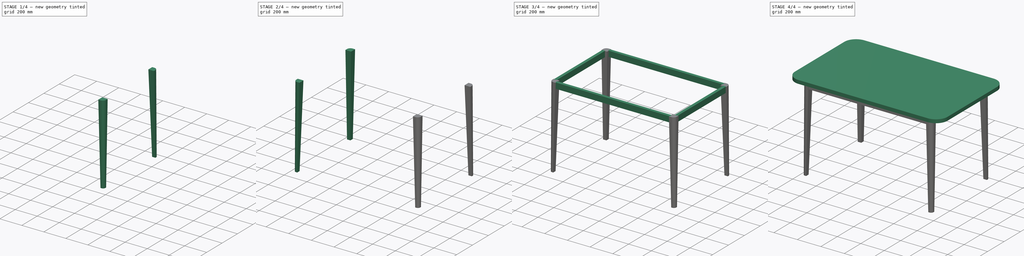
[diagram: build sequence overview — one tinted view per stage of 4, left to right]
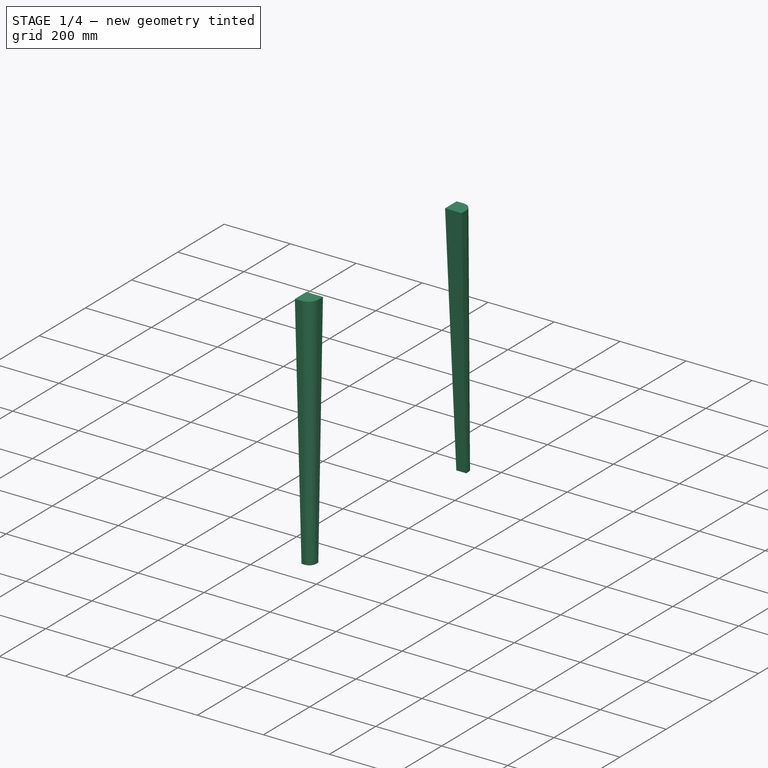
[diagram: stage 1 of 4 — iso view after this stage's code; geometry added in this stage tinted green]
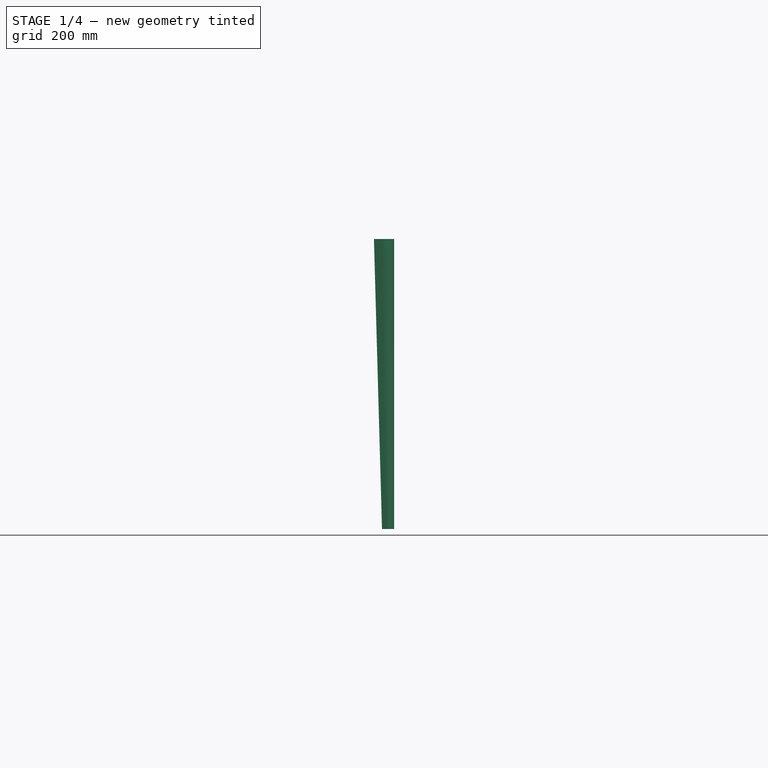
[diagram: stage 1 of 4 — front view after this stage's code; geometry added in this stage tinted green]
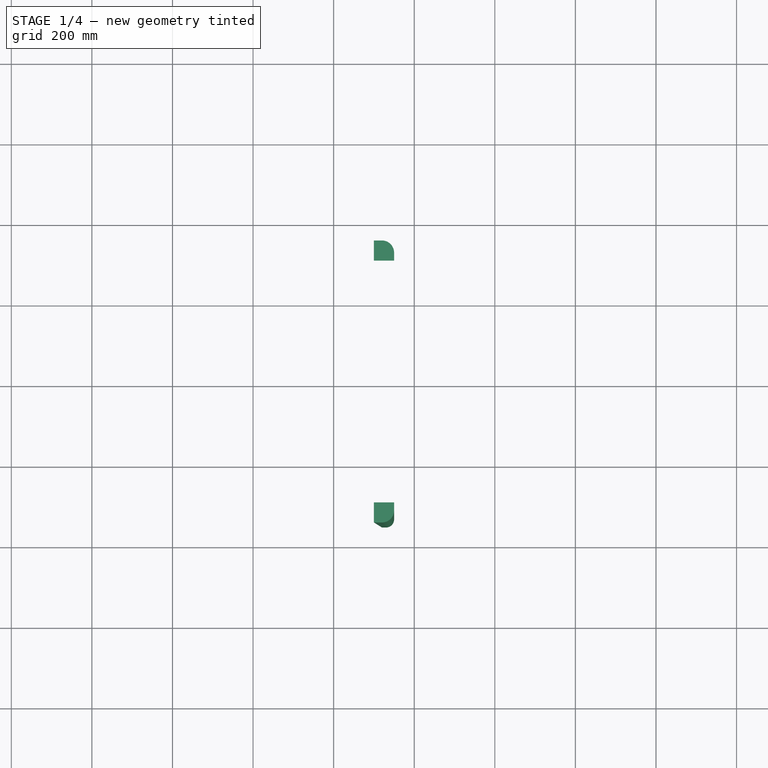
[diagram: stage 1 of 4 — top view after this stage's code; geometry added in this stage tinted green]
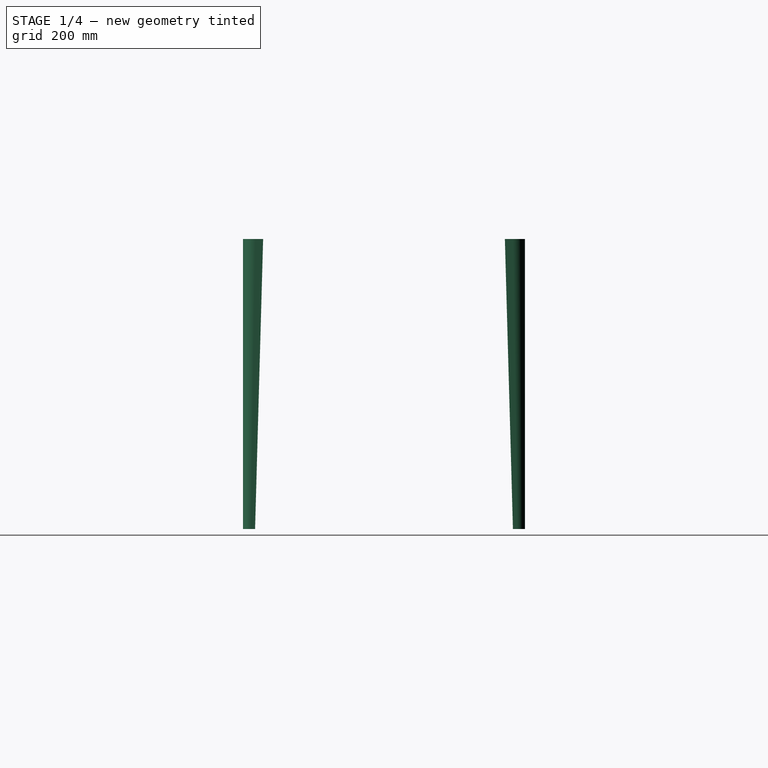
[diagram: stage 1 of 4 — right view after this stage's code; geometry added in this stage tinted green]
FCSTD DOCUMENT  (FreeCAD 1.0R38641 +468 (Git))
Label: Rectangular_tables_R02
License: All rights reserved
LicenseURL: https://en.wikipedia.org/wiki/All_rights_reserved
objects: Sketcher::SketchObject×12, App::DocumentObjectGroup×11, App::MaterialObjectPython×5, App::FeaturePython×5, Part::Loft×4, App::TextDocument×4, Part::Extrusion×3, Part::Compound×2, Spreadsheet::Sheet×1, App::VarSet×1, Part::Part2DObjectPython×1, App::DocumentObjectGroupPython×1
note: 39 computed .brp shape members not serialized (recipe doc carries the construction recipe); baked Part::Feature solids carry a one-line shape summary decoded from their .brp

FEATURE [Sketcher::SketchObject] Sketch262
  ArcFitTolerance = 0
  AttachmentSupport = -> [Sketch022]
  ExternalGeometry = -> [Sketch022]
  FullyConstrained = true
  MakeInternals = false
  MapMode = 2
  expr: .Constraints.Retreat_01 = VarSet.Feet_B_Retreat_01
  expr: .Constraints.Retreat_02 = VarSet.Feet_B_Retreat_02
  sketch-geometry (5):
    g0: LineSegment StartX=520 StartY=-320 StartZ=0 EndX=550 EndY=-320 EndZ=0
    g1: LineSegment StartX=550 StartY=-320 StartZ=0 EndX=550 EndY=-330 EndZ=0
    g2: LineSegment StartX=530 StartY=-350 StartZ=0 EndX=520 EndY=-350 EndZ=0
    g3: LineSegment StartX=520 StartY=-350 StartZ=0 EndX=520 EndY=-320 EndZ=0
    g4: ArcOfCircle CenterX=530 CenterY=-330 CenterZ=0 NormalX=0 NormalY=0 NormalZ=1 AngleXU=0 Radius=20 StartAngle=4.71239 EndAngle=6.28319
  constraints (14):
    c: Coincident(g0,g1)
    c: Coincident(g2,g3)
    c: Coincident(g3,g0)
    c: Horizontal(g0)
    c: Horizontal(g2)
    c: Vertical(g1)
    c: Vertical(g3)
    c: DistanceX(g0,g0) = 30  'Thickness'
    c: Tangent(g1,g4) = 1.5708
    c: Tangent(g2,g4) = 1.5708
    c: DistanceX(g0,g-4) = 100  'Retreat_01'
    c: DistanceY(g-4,g2) = 50  'Retreat_02'
    c: DistanceX(g0,g4) = 10
    c: DistanceY(g4,g0) = 10
FEATURE [Sketcher::SketchObject] Sketch263
  ArcFitTolerance = 0
  AttachmentOffset = pos=(0,0,720) rot=(0,0,1;0rad)
  AttachmentSupport = -> [Sketch022]
  ExternalGeometry = -> [Sketch022]
  FullyConstrained = true
  MakeInternals = false
  MapMode = 2
  Placement = pos=(0,0,720) rot=(0,0,1;0rad)
  expr: .AttachmentOffset.Base.z = VarSet.Base_dimensions_B_Height - VarSet.Panel_B_Thickness
  expr: .Constraints.Retreat_01 = VarSet.Feet_B_Retreat_01
  expr: .Constraints.Retreat_02 = VarSet.Feet_B_Retreat_02
  sketch-geometry (5):
    g0: LineSegment StartX=500 StartY=-300 StartZ=0 EndX=550 EndY=-300 EndZ=0
    g1: LineSegment StartX=550 StartY=-300 StartZ=0 EndX=550 EndY=-320 EndZ=0
    g2: LineSegment StartX=520 StartY=-350 StartZ=0 EndX=500 EndY=-350 EndZ=0
    g3: LineSegment StartX=500 StartY=-350 StartZ=0 EndX=500 EndY=-300 EndZ=0
    g4: ArcOfCircle CenterX=520 CenterY=-320 CenterZ=0 NormalX=0 NormalY=0 NormalZ=1 AngleXU=0 Radius=30 StartAngle=4.71239 EndAngle=6.28319
  constraints (14):
    c: Coincident(g0,g1)
    c: Coincident(g2,g3)
    c: Coincident(g3,g0)
    c: Horizontal(g0)
    c: Horizontal(g2)
    c: Vertical(g1)
    c: Vertical(g3)
    c: DistanceX(g0,g0) = 50  'Thickness'
    c: Tangent(g2,g4) = 1.5708
    c: Tangent(g1,g4) = 1.5708
    c: DistanceY(g-4,g2) = 50  'Retreat_02'
    c: DistanceX(g0,g-4) = 100  'Retreat_01'
    c: DistanceX(g0,g4) = 20
    c: DistanceY(g4,g0) = 20
FEATURE [Part::Loft] Loft002  label="Foot_03_"
  Closed = false
  MaxDegree = 5
  Ruled = true
  Sections = -> [Sketch262,Sketch263]
  Solid = true
FEATURE [Sketcher::SketchObject] Sketch264
  ArcFitTolerance = 0
  AttachmentSupport = -> [Sketch022]
  ExternalGeometry = -> [Sketch022]
  FullyConstrained = true
  MakeInternals = false
  MapMode = 2
  expr: .Constraints.Retreat_01 = VarSet.Feet_B_Retreat_01
  expr: .Constraints.Retreat_02 = VarSet.Feet_B_Retreat_02
  sketch-geometry (5):
    g0: LineSegment StartX=520 StartY=350 StartZ=0 EndX=530 EndY=350 EndZ=0
    g1: LineSegment StartX=550 StartY=330 StartZ=0 EndX=550 EndY=320 EndZ=0
    g2: LineSegment StartX=550 StartY=320 StartZ=0 EndX=520 EndY=320 EndZ=0
    g3: LineSegment StartX=520 StartY=320 StartZ=0 EndX=520 EndY=350 EndZ=0
    g4: ArcOfCircle CenterX=530 CenterY=330 CenterZ=0 NormalX=0 NormalY=0 NormalZ=1 AngleXU=0 Radius=20 StartAngle=-1.8e-15 EndAngle=1.5708
  constraints (14):
    c: Coincident(g1,g2)
    c: Coincident(g2,g3)
    c: Coincident(g3,g0)
    c: Horizontal(g0)
    c: Horizontal(g2)
    c: Vertical(g1)
    c: Vertical(g3)
    c: Tangent(g0,g4) = 1.5708
    c: Tangent(g1,g4) = 1.5708
    c: DistanceX(g2,g2) = 30  'Thickness'
    c: DistanceY(g0,g-4) = 50  'Retreat_02'
    c: DistanceX(g1,g-4) = 100  'Retreat_01'
    c: DistanceX(g2,g4) = 10
    c: DistanceY(g2,g4) = 10
FEATURE [Sketcher::SketchObject] Sketch265
  ArcFitTolerance = 0
  AttachmentOffset = pos=(0,0,720) rot=(0,0,1;0rad)
  AttachmentSupport = -> [Sketch022]
  ExternalGeometry = -> [Sketch022]
  FullyConstrained = true
  MakeInternals = false
  MapMode = 2
  Placement = pos=(0,0,720) rot=(0,0,1;0rad)
  expr: .AttachmentOffset.Base.z = VarSet.Base_dimensions_B_Height - VarSet.Panel_B_Thickness
  expr: .Constraints.Retreat_01 = VarSet.Feet_B_Retreat_01
  expr: .Constraints.Retreat_02 = VarSet.Feet_B_Retreat_02
  sketch-geometry (5):
    g0: LineSegment StartX=500 StartY=300 StartZ=0 EndX=550 EndY=300 EndZ=0
    g1: LineSegment StartX=550 StartY=300 StartZ=0 EndX=550 EndY=320 EndZ=0
    g2: LineSegment StartX=520 StartY=350 StartZ=0 EndX=500 EndY=350 EndZ=0
    g3: LineSegment StartX=500 StartY=350 StartZ=0 EndX=500 EndY=300 EndZ=0
    g4: ArcOfCircle CenterX=520 CenterY=320 CenterZ=0 NormalX=0 NormalY=0 NormalZ=1 AngleXU=0 Radius=30 StartAngle=1.315e-12 EndAngle=1.5708
  constraints (14):
    c: Coincident(g0,g1)
    c: Coincident(g2,g3)
    c: Coincident(g3,g0)
    c: Horizontal(g0)
    c: Horizontal(g2)
    c: Vertical(g1)
    c: Vertical(g3)
    c: DistanceX(g0,g0) = 50  'Thickness'
    c: Tangent(g2,g4) = -1.5708
    c: Tangent(g1,g4) = -1.5708
    c: DistanceY(g2,g-4) = 50  'Retreat_02'
    c: DistanceX(g0,g-4) = 100  'Retreat_01'
    c: DistanceX(g0,g4) = 20
    c: DistanceY(g0,g4) = 20
FEATURE [Part::Loft] Loft003  label="Foot_03_001"
  Closed = false
  MaxDegree = 5
  Ruled = true
  Sections = -> [Sketch264,Sketch265]
  Solid = true
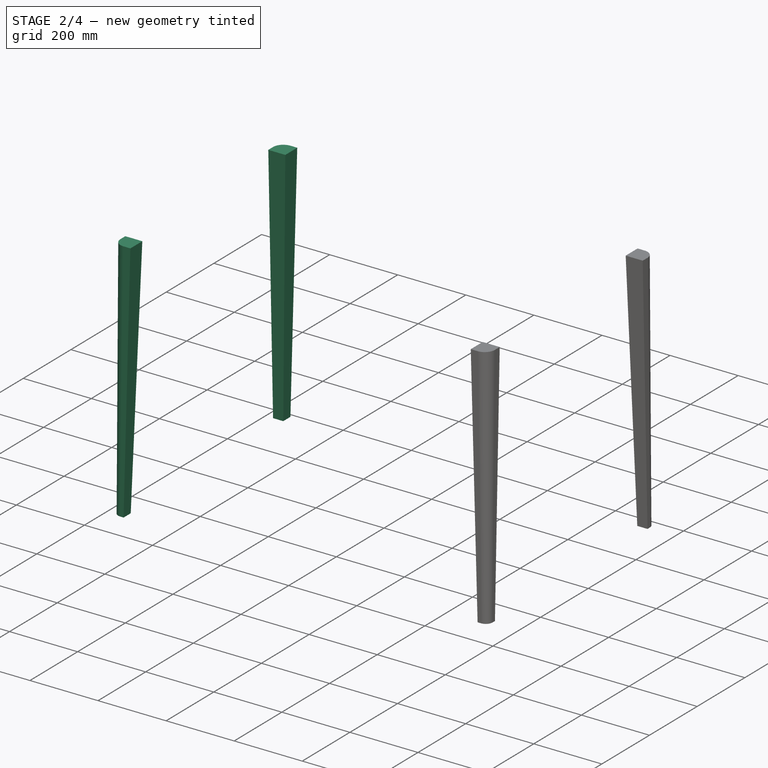
[diagram: stage 2 of 4 — iso view after this stage's code; geometry added in this stage tinted green]
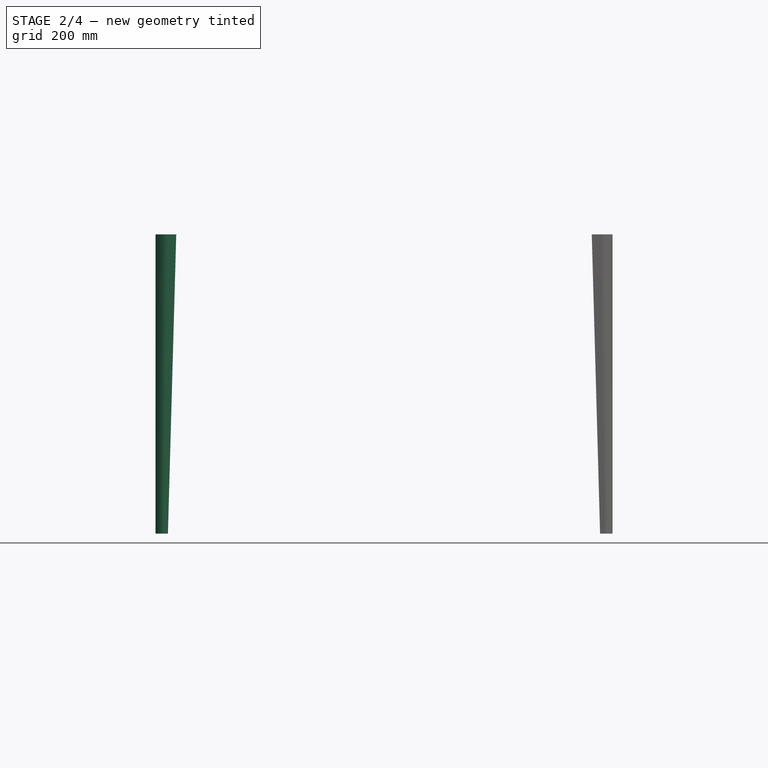
[diagram: stage 2 of 4 — front view after this stage's code; geometry added in this stage tinted green]
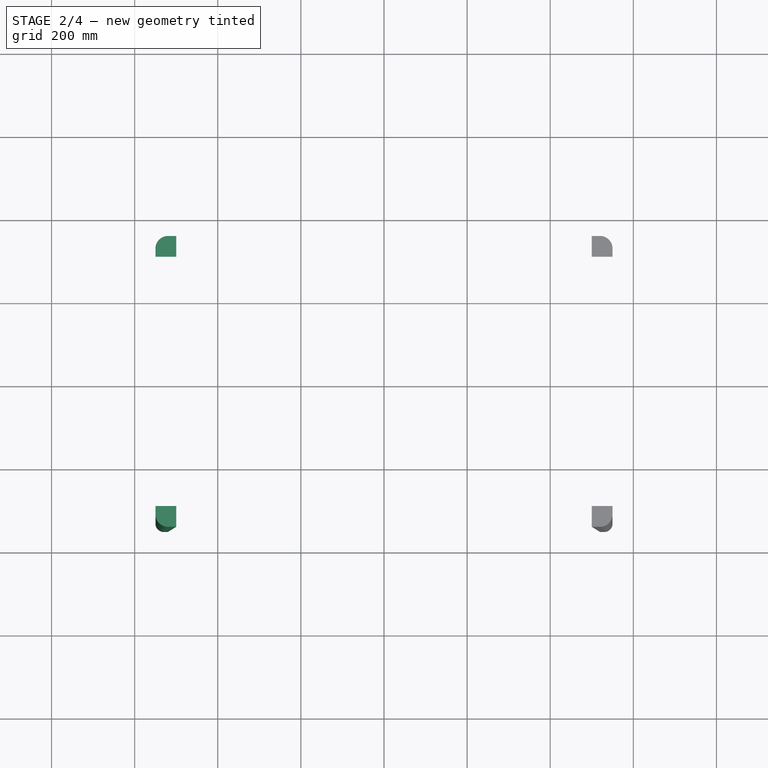
[diagram: stage 2 of 4 — top view after this stage's code; geometry added in this stage tinted green]
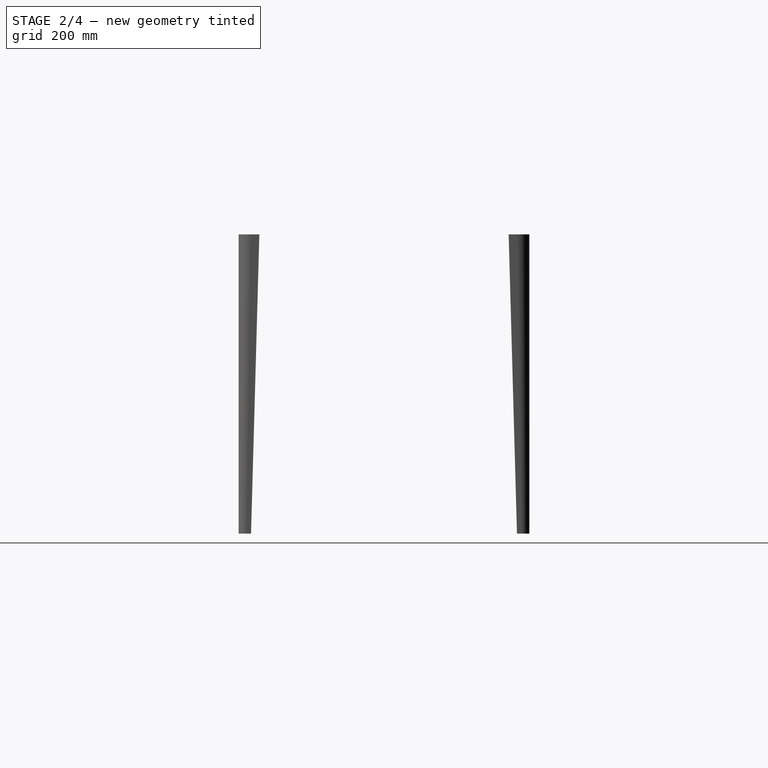
[diagram: stage 2 of 4 — right view after this stage's code; geometry added in this stage tinted green]
FEATURE [Sketcher::SketchObject] Sketch022  label="Rectangular table_base_move_rotate_#_"
  ArcFitTolerance = 0
  FullyConstrained = true
  MakeInternals = false
  expr: .Constraints.Length = VarSet.Base_dimensions_B_Length
  expr: .Constraints.Width = VarSet.Base_dimensions_B_Width
  expr: Label = VarSet.A_Component_Label + <<_base_move_rotate_#_>>
  sketch-geometry (11):
    g0: LineSegment StartX=-650 StartY=400 StartZ=0 EndX=650 EndY=400 EndZ=0
    g1: LineSegment StartX=650 StartY=400 StartZ=0 EndX=650 EndY=-400 EndZ=0
    g2: LineSegment StartX=650 StartY=-400 StartZ=0 EndX=-650 EndY=-400 EndZ=0
    g3: LineSegment StartX=-650 StartY=-400 StartZ=0 EndX=-650 EndY=400 EndZ=0
    g4: LineSegment [constr] StartX=-750 StartY=500 StartZ=0 EndX=750 EndY=500 EndZ=0
    g5: LineSegment [constr] StartX=750 StartY=500 StartZ=0 EndX=750 EndY=-500 EndZ=0
    g6: LineSegment [constr] StartX=750 StartY=-500 StartZ=0 EndX=-750 EndY=-500 EndZ=0
    g7: LineSegment [constr] StartX=-750 StartY=-500 StartZ=0 EndX=-750 EndY=500 EndZ=0
    g8: LineSegment StartX=-750 StartY=0 StartZ=0 EndX=750 EndY=0 EndZ=0
    g9: LineSegment StartX=0 StartY=500 StartZ=0 EndX=0 EndY=-500 EndZ=0
    g10: Circle CenterX=0 CenterY=0 CenterZ=0 NormalX=0 NormalY=0 NormalZ=1 AngleXU=0 Radius=50
  constraints (30):
    c: Coincident(g0,g1)
    c: Coincident(g1,g2)
    c: Coincident(g2,g3)
    c: Coincident(g3,g0)
    c: Horizontal(g2)
    c: Vertical(g1)
    c: DistanceX(g2,g2) = 1300  'Length'
    c: DistanceY(g3,g3) = 800  'Width'
    c: Symmetric(g0,g0,g-2)
    c: Symmetric(g0,g2,g-1)
    c: Coincident(g4,g5)
    c: Coincident(g5,g6)
    c: Coincident(g6,g7)
    c: Coincident(g7,g4)
    c: Horizontal(g6)
    c: Vertical(g7)
    c: Symmetric(g4,g5,g-1)
    c: Symmetric(g4,g4,g-2)
    c: DistanceY(g0,g4) = 100
    c: DistanceX(g0,g4) = 100
    c: PointOnObject(g8,g7)
    c: PointOnObject(g8,g5)
    c: Horizontal(g8)
    c: PointOnObject(g9,g4)
    c: PointOnObject(g9,g6)
    c: Vertical(g9)
    c: PointOnObject(g8,g-1)
    c: PointOnObject(g9,g-2)
    c: Coincident(g10,g-1)
    c: Diameter(g10) = 100
FEATURE [Spreadsheet::Sheet] Spreadsheet003  label="Spreadsheet_Rectangular table_#_"
  cells = A1='Description:; A2==<<%s>> % VarSet.A_Component_Label + << of %s x %s x %s>> % tuple(VarSet.Base_dimensions_B_Length; VarSet.Base_dimensions_B_Width; VarSet.Base_dimensions_B_Height) + << in length, width and height, compound of panel of %s>> % VarSet.Panel_C_Material.Label + << and feet of %s>> % VarSet.Feet_C_Material.Label + <<.>>; A4='Parts; B4='L; C4='H; D4='W; E4='T; F4='A; G4='Materials; H4='Quantities; A5='01-Top panel; B5==VarSet.Base_dimensions_B_Length; D5==VarSet.Base_dimensions_B_Width; E5==VarSet.Panel_B_Thickness; F5==Extrude039021.Area; G5==VarSet.Panel_C_Material.Label; H5=1; A6='02-Foot frames; B6==(VarSet.Base_dimensions_B_Length - 180 mm) * 2 + (VarSet.Base_dimensions_B_Width - 120 mm) * 2; C6==Sketch259.Constraints.Height; E6==Sketch259.Constraints.Width; G6==VarSet.Foot_frames_C_Material.Label; H6=4; A7='03-Feet; C7==VarSet.Base_dimensions_B_Height - VarSet.Panel_B_Thickness; E7==<<from %s>> % Sketch257.Constraints.Thickness + << to %s>> % Sketch258.Constraints.Thickness; G7==VarSet.Feet_C_Material.Label; H7=4
  expr: Label = <<Spreadsheet_>> + VarSet.A_Component_Label + <<_#_>>
FEATURE [Sketcher::SketchObject] Sketch255  label="Sketch032_Bottom_panel"
  ArcFitTolerance = 0
  AttachmentSupport = -> [Sketch022]
  ExternalGeometry = -> [Sketch022]
  FullyConstrained = true
  MakeInternals = false
  MapMode = 2
  expr: .Constraints.Radius = VarSet.Panel_B_Radius
  sketch-geometry (8):
    g0: LineSegment StartX=-550 StartY=400 StartZ=0 EndX=550 EndY=400 EndZ=0
    g1: LineSegment StartX=650 StartY=300 StartZ=0 EndX=650 EndY=-300 EndZ=0
    g2: LineSegment StartX=550 StartY=-400 StartZ=0 EndX=-550 EndY=-400 EndZ=0
    g3: LineSegment StartX=-650 StartY=-300 StartZ=0 EndX=-650 EndY=300 EndZ=0
    g4: ArcOfCircle CenterX=-550 CenterY=300 CenterZ=0 NormalX=0 NormalY=0 NormalZ=1 AngleXU=0 Radius=100 StartAngle=1.5708 EndAngle=3.14159
    g5: ArcOfCircle CenterX=-550 CenterY=-300 CenterZ=0 NormalX=0 NormalY=0 NormalZ=1 AngleXU=0 Radius=100 StartAngle=3.14159 EndAngle=4.71239
    g6: ArcOfCircle CenterX=550 CenterY=-300 CenterZ=0 NormalX=0 NormalY=0 NormalZ=1 AngleXU=0 Radius=100 StartAngle=4.71239 EndAngle=6.28319
    g7: ArcOfCircle CenterX=550 CenterY=300 CenterZ=0 NormalX=0 NormalY=0 NormalZ=1 AngleXU=0 Radius=100 StartAngle=1.83321e-11 EndAngle=1.5708
  constraints (20):
    c: Horizontal(g0)
    c: Horizontal(g2)
    c: Vertical(g1)
    c: Vertical(g3)
    c: Tangent(g3,g4) = 1.5708
    c: Tangent(g0,g4) = 1.5708
    c: Tangent(g3,g5) = 1.5708
    c: Tangent(g2,g5) = 1.5708
    c: Tangent(g2,g6) = 1.5708
    c: Tangent(g1,g6) = 1.5708
    c: Tangent(g1,g7) = 1.5708
    c: Tangent(g0,g7) = 1.5708
    c: Equal(g4,g7)
    c: Equal(g4,g6)
    c: Equal(g4,g5)
    c: Radius(g4) = 100  'Radius'
    c: PointOnObject(g3,g-3)
    c: PointOnObject(g1,g-4)
    c: Horizontal(g2,g-4)
    c: Horizontal(g0,g-3)
FEATURE [Sketcher::SketchObject] Sketch257
  ArcFitTolerance = 0
  AttachmentSupport = -> [Sketch022]
  ExternalGeometry = -> [Sketch022]
  FullyConstrained = true
  MakeInternals = false
  MapMode = 2
  expr: .Constraints.Retreat_01 = VarSet.Feet_B_Retreat_01
  expr: .Constraints.Retreat_02 = VarSet.Feet_B_Retreat_02
  sketch-geometry (5):
    g0: LineSegment StartX=-550 StartY=-320 StartZ=0 EndX=-520 EndY=-320 EndZ=0
    g1: LineSegment StartX=-520 StartY=-320 StartZ=0 EndX=-520 EndY=-350 EndZ=0
    g2: LineSegment StartX=-520 StartY=-350 StartZ=0 EndX=-530 EndY=-350 EndZ=0
    g3: LineSegment StartX=-550 StartY=-330 StartZ=0 EndX=-550 EndY=-320 EndZ=0
    g4: ArcOfCircle CenterX=-530 CenterY=-330 CenterZ=0 NormalX=0 NormalY=0 NormalZ=1 AngleXU=0 Radius=20 StartAngle=3.14159 EndAngle=4.71239
  constraints (14):
    c: Coincident(g0,g1)
    c: Coincident(g1,g2)
    c: Coincident(g3,g0)
    c: Horizontal(g0)
    c: Horizontal(g2)
    c: Vertical(g1)
    c: Vertical(g3)
    c: Tangent(g3,g4) = 1.5708
    c: Tangent(g2,g4) = 1.5708
    c: DistanceX(g0,g0) = 30  'Thickness'
    c: DistanceX(g-3,g0) = 100  'Retreat_01'
    c: DistanceY(g-3,g1) = 50  'Retreat_02'
    c: DistanceY(g4,g0) = 10
    c: DistanceX(g4,g0) = 10
FEATURE [Sketcher::SketchObject] Sketch258
  ArcFitTolerance = 0
  AttachmentOffset = pos=(0,0,720) rot=(0,0,1;0rad)
  AttachmentSupport = -> [Sketch022]
  ExternalGeometry = -> [Sketch022]
  FullyConstrained = true
  MakeInternals = false
  MapMode = 2
  Placement = pos=(0,0,720) rot=(0,0,1;0rad)
  expr: .AttachmentOffset.Base.z = VarSet.Base_dimensions_B_Height - VarSet.Panel_B_Thickness
  expr: .Constraints.Retreat_01 = VarSet.Feet_B_Retreat_01
  expr: .Constraints.Retreat_02 = VarSet.Feet_B_Retreat_02
  sketch-geometry (5):
    g0: LineSegment StartX=-550 StartY=-300 StartZ=0 EndX=-500 EndY=-300 EndZ=0
    g1: LineSegment StartX=-500 StartY=-300 StartZ=0 EndX=-500 EndY=-350 EndZ=0
    g2: LineSegment StartX=-500 StartY=-350 StartZ=0 EndX=-520 EndY=-350 EndZ=0
    g3: LineSegment StartX=-550 StartY=-320 StartZ=0 EndX=-550 EndY=-300 EndZ=0
    g4: ArcOfCircle CenterX=-520 CenterY=-320 CenterZ=0 NormalX=0 NormalY=0 NormalZ=1 AngleXU=0 Radius=30 StartAngle=3.14159 EndAngle=4.71239
  constraints (14):
    c: Coincident(g0,g1)
    c: Coincident(g1,g2)
    c: Coincident(g3,g0)
    c: Horizontal(g0)
    c: Horizontal(g2)
    c: Vertical(g1)
    c: Vertical(g3)
    c: DistanceX(g0,g0) = 50  'Thickness'
    c: Tangent(g2,g4) = 1.5708
    c: Tangent(g3,g4) = 1.5708
    c: DistanceX(g-3,g0) = 100  'Retreat_01'
    c: DistanceY(g-3,g1) = 50  'Retreat_02'
    c: DistanceX(g4,g0) = 20
    c: DistanceY(g4,g0) = 20
FEATURE [Part::Loft] Loft  label="Foot_01_"
  Closed = false
  MaxDegree = 5
  Ruled = true
  Sections = -> [Sketch257,Sketch258]
  Solid = true
FEATURE [Sketcher::SketchObject] Sketch260
  ArcFitTolerance = 0
  AttachmentSupport = -> [Sketch022]
  ExternalGeometry = -> [Sketch022]
  FullyConstrained = true
  MakeInternals = false
  MapMode = 2
  expr: .Constraints.Retreat_01 = VarSet.Feet_B_Retreat_01
  expr: .Constraints.Retreat_02 = VarSet.Feet_B_Retreat_02
  sketch-geometry (5):
    g0: LineSegment StartX=-530 StartY=350 StartZ=0 EndX=-520 EndY=350 EndZ=0
    g1: LineSegment StartX=-520 StartY=350 StartZ=0 EndX=-520 EndY=320 EndZ=0
    g2: LineSegment StartX=-520 StartY=320 StartZ=0 EndX=-550 EndY=320 EndZ=0
    g3: LineSegment StartX=-550 StartY=320 StartZ=0 EndX=-550 EndY=330 EndZ=0
    g4: ArcOfCircle CenterX=-530 CenterY=330 CenterZ=0 NormalX=0 NormalY=0 NormalZ=1 AngleXU=0 Radius=20 StartAngle=1.5708 EndAngle=3.14159
  constraints (14):
    c: Coincident(g0,g1)
    c: Coincident(g1,g2)
    c: Coincident(g2,g3)
    c: Horizontal(g0)
    c: Horizontal(g2)
    c: Vertical(g1)
    c: Vertical(g3)
    c: DistanceY(g1,g1) = 30  'Thickness'
    c: Tangent(g3,g4) = 1.5708
    c: Tangent(g0,g4) = 1.5708
    c: DistanceY(g0,g-3) = 50  'Retreat_02'
    c: DistanceX(g-3,g2) = 100  'Retreat_01'
    c: DistanceX(g4,g1) = 10
    c: DistanceY(g1,g4) = 10
FEATURE [Sketcher::SketchObject] Sketch261
  ArcFitTolerance = 0
  AttachmentOffset = pos=(0,0,720) rot=(0,0,1;0rad)
  AttachmentSupport = -> [Sketch022]
  ExternalGeometry = -> [Sketch022]
  FullyConstrained = true
  MakeInternals = false
  MapMode = 2
  Placement = pos=(0,0,720) rot=(0,0,1;0rad)
  expr: .AttachmentOffset.Base.z = VarSet.Base_dimensions_B_Height - VarSet.Panel_B_Thickness
  expr: .Constraints.Retreat_01 = VarSet.Feet_B_Retreat_01
  expr: .Constraints.Retreat_02 = VarSet.Feet_B_Retreat_02
  sketch-geometry (5):
    g0: LineSegment StartX=-520 StartY=350 StartZ=0 EndX=-500 EndY=350 EndZ=0
    g1: LineSegment StartX=-500 StartY=350 StartZ=0 EndX=-500 EndY=300 EndZ=0
    g2: LineSegment StartX=-500 StartY=300 StartZ=0 EndX=-550 EndY=300 EndZ=0
    g3: LineSegment StartX=-550 StartY=300 StartZ=0 EndX=-550 EndY=320 EndZ=0
    g4: ArcOfCircle CenterX=-520 CenterY=320 CenterZ=0 NormalX=0 NormalY=0 NormalZ=1 AngleXU=0 Radius=30 StartAngle=1.5708 EndAngle=3.14159
  constraints (14):
    c: Coincident(g0,g1)
    c: Coincident(g1,g2)
    c: Coincident(g2,g3)
    c: Horizontal(g0)
    c: Horizontal(g2)
    c: Vertical(g1)
    c: Vertical(g3)
    c: DistanceY(g1,g1) = 50  'Tickness'
    c: Tangent(g3,g4) = 1.5708
    c: Tangent(g0,g4) = 1.5708
    c: DistanceX(g-3,g2) = 100  'Retreat_01'
    c: DistanceY(g0,g-3) = 50  'Retreat_02'
    c: DistanceX(g4,g1) = 20
    c: DistanceY(g1,g4) = 20
FEATURE [Part::Loft] Loft001  label="Foot_02_"
  Closed = false
  MaxDegree = 5
  Ruled = true
  Sections = -> [Sketch260,Sketch261]
  Solid = true
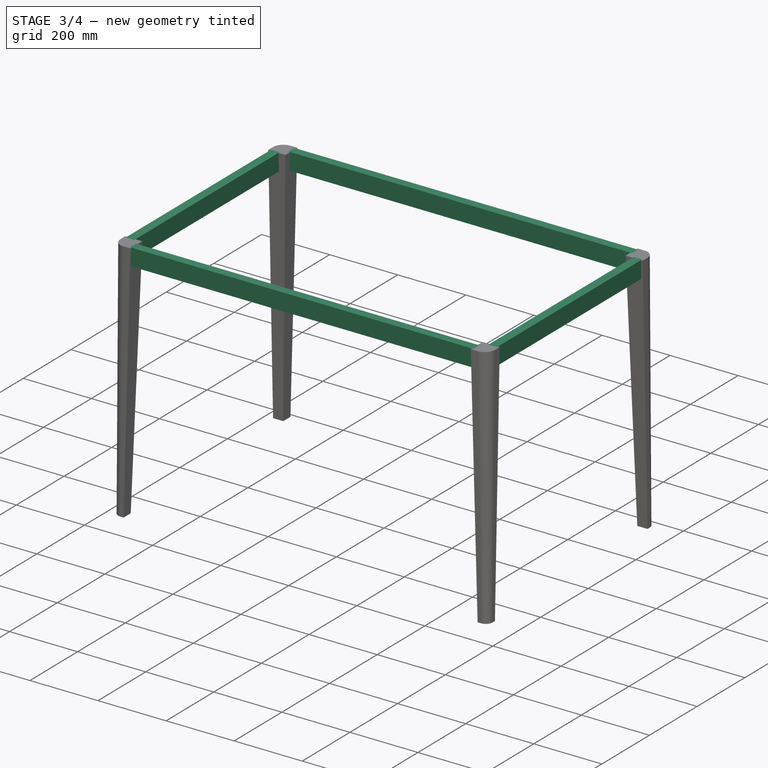
[diagram: stage 3 of 4 — iso view after this stage's code; geometry added in this stage tinted green]
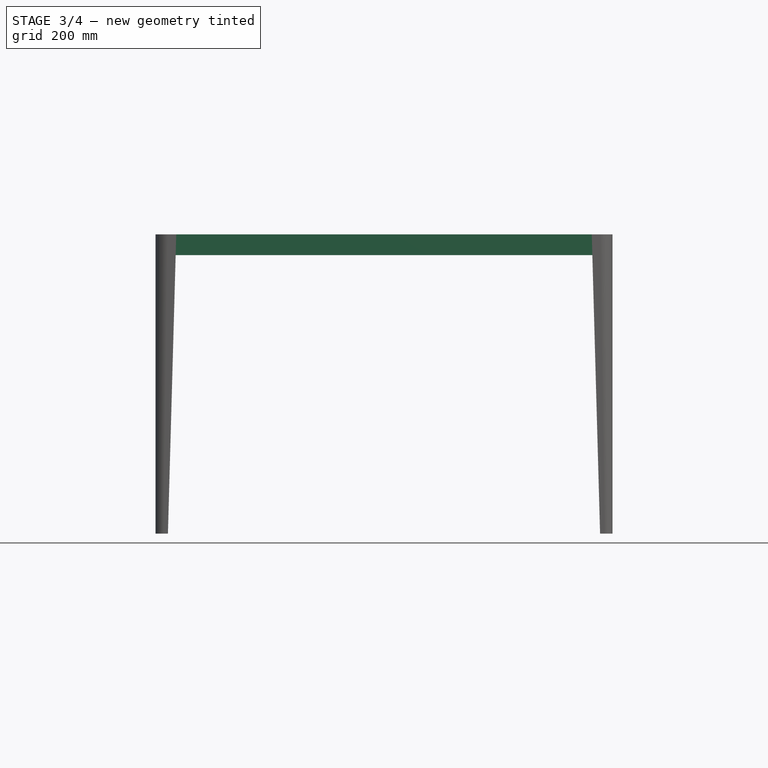
[diagram: stage 3 of 4 — front view after this stage's code; geometry added in this stage tinted green]
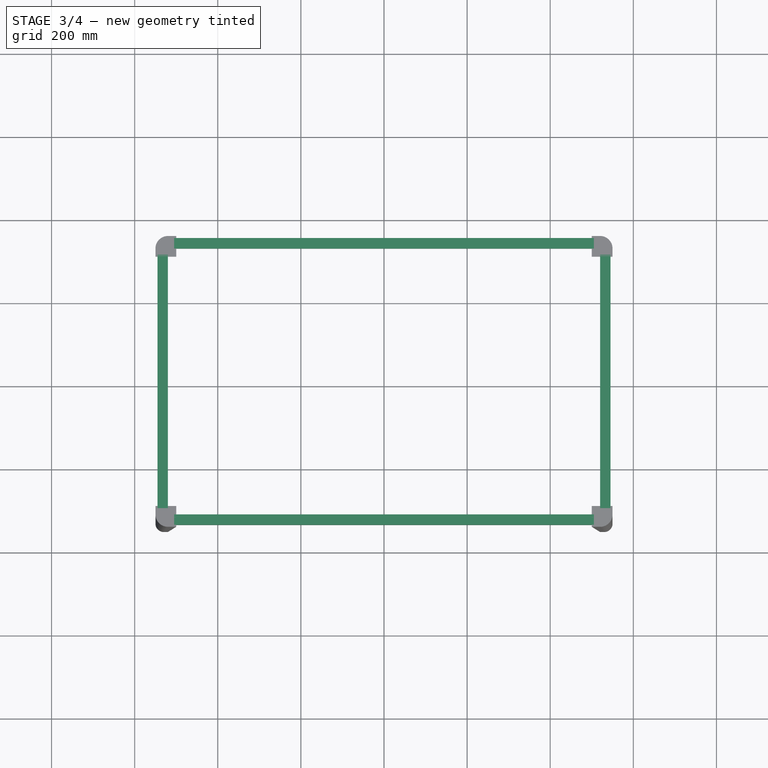
[diagram: stage 3 of 4 — top view after this stage's code; geometry added in this stage tinted green]
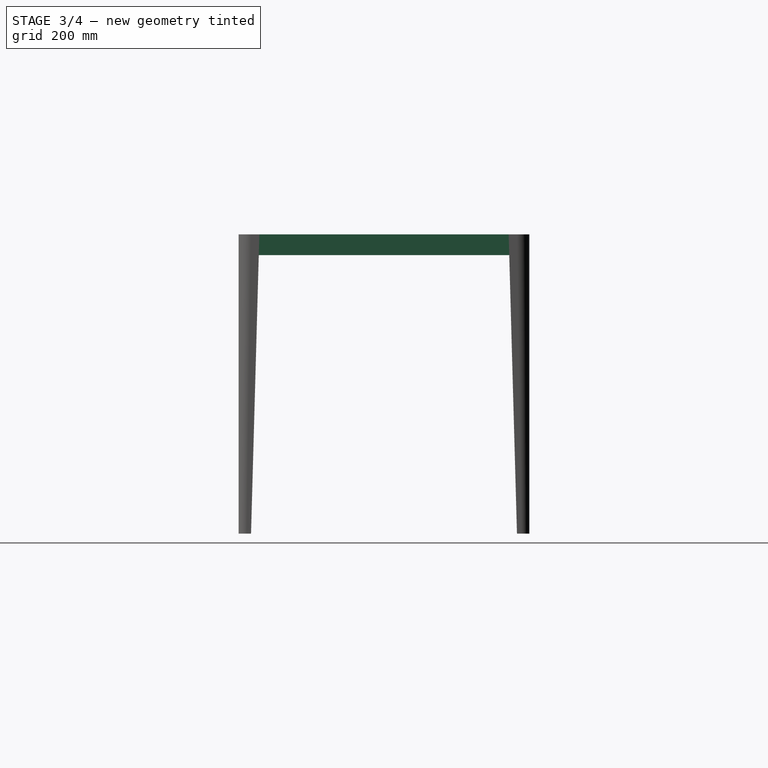
[diagram: stage 3 of 4 — right view after this stage's code; geometry added in this stage tinted green]
FEATURE [Sketcher::SketchObject] Sketch259
  ArcFitTolerance = 0
  AttachmentOffset = pos=(0,0,-505) rot=(0,0,1;0rad)
  AttachmentSupport = -> [Sketch022]
  ExternalGeometry = -> [Sketch022]
  FullyConstrained = true
  MakeInternals = false
  MapMode = 4
  Placement = pos=(-505,0,0) rot=(0.57735,0.57735,0.57735;2.0944rad)
  expr: .AttachmentOffset.Base.x = 0
  expr: .AttachmentOffset.Base.y = 0
  expr: .AttachmentOffset.Base.z = -VarSet.Base_dimensions_B_Length / 2 + VarSet.Feet_B_Retreat_01 + 45 mm
  expr: .Constraints.Front_retreat = VarSet.Feet_B_Retreat_02 + 5 mm
  expr: .Constraints.Height_from_floor = VarSet.Base_dimensions_B_Height - VarSet.Panel_B_Thickness
  expr: .Constraints.Rear_retreat = VarSet.Feet_B_Retreat_02 + 5 mm
  sketch-geometry (8):
    g0: LineSegment StartX=-345 StartY=720 StartZ=0 EndX=-320 EndY=720 EndZ=0
    g1: LineSegment StartX=-320 StartY=720 StartZ=0 EndX=-320 EndY=670 EndZ=0
    g2: LineSegment StartX=-320 StartY=670 StartZ=0 EndX=-345 EndY=670 EndZ=0
    g3: LineSegment StartX=-345 StartY=670 StartZ=0 EndX=-345 EndY=720 EndZ=0
    g4: LineSegment StartX=320 StartY=720 StartZ=0 EndX=345 EndY=720 EndZ=0
    g5: LineSegment StartX=345 StartY=720 StartZ=0 EndX=345 EndY=670 EndZ=0
    g6: LineSegment StartX=345 StartY=670 StartZ=0 EndX=320 EndY=670 EndZ=0
    g7: LineSegment StartX=320 StartY=670 StartZ=0 EndX=320 EndY=720 EndZ=0
  constraints (24):
    c: Horizontal(g0)
    c: Coincident(g0,g1)
    c: Vertical(g1)
    c: Coincident(g3,g0)
    c: Vertical(g3)
    c: DistanceX(g0,g0) = 25  'Width'
    c: Horizontal(g2)
    c: DistanceX(g-3,g0) = 55  'Front_retreat'
    c: DistanceY(g2,g0) = 50  'Height'
    c: DistanceY(g0) = 720  'Height_from_floor'
    c: Coincident(g4,g5)
    c: Coincident(g7,g4)
    c: Horizontal(g4)
    c: Horizontal(g6)
    c: Vertical(g5)
    c: Vertical(g7)
    c: DistanceX(g4,g4) = 25
    c: DistanceY(g6,g4) = 50
    c: Horizontal(g4,g0)
    c: DistanceX(g4,g-3) = 55  'Rear_retreat'
    c: Coincident(g6,g7)
    c: Coincident(g5,g6)
    c: Coincident(g2,g3)
    c: Coincident(g1,g2)
FEATURE [Part::Extrusion] Extrude084143354  label="Frame_"
  Base = -> Sketch259
  Dir = (1,0,0)
  DirMode = 2
  FaceMakerClass = Part::FaceMakerBullseye
  FaceMakerMode = 3
  LengthFwd = 1010
  LengthRev = 0
  Solid = true
  Symmetric = false
  expr: LengthFwd = VarSet.Base_dimensions_B_Length - 2 * VarSet.Feet_B_Retreat_01 - 90 mm
FEATURE [Sketcher::SketchObject] Sketch266
  ArcFitTolerance = 0
  AttachmentOffset = pos=(0,0,-305) rot=(0,0,1;0rad)
  AttachmentSupport = -> [Sketch022]
  ExternalGeometry = -> [Sketch022]
  FullyConstrained = true
  MakeInternals = false
  MapMode = 3
  Placement = pos=(0,305,-6.77e-14) rot=(1,0,0;1.5708rad)
  expr: .AttachmentOffset.Base.x = 0
  expr: .AttachmentOffset.Base.y = 0
  expr: .AttachmentOffset.Base.z = -VarSet.Base_dimensions_B_Width / 2 + VarSet.Feet_B_Retreat_02 + 45 mm
  expr: .Constraints.Height = VarSet.Base_dimensions_B_Height - VarSet.Panel_B_Thickness
  expr: .Constraints.Retreat_02 = VarSet.Feet_B_Retreat_01 + 5 mm
  expr: .Constraints.Retreat_2 = VarSet.Feet_B_Retreat_01 + 5 mm
  sketch-geometry (8):
    g0: LineSegment StartX=520 StartY=720 StartZ=0 EndX=545 EndY=720 EndZ=0
    g1: LineSegment StartX=545 StartY=720 StartZ=0 EndX=545 EndY=670 EndZ=0
    g2: LineSegment StartX=545 StartY=670 StartZ=0 EndX=520 EndY=670 EndZ=0
    g3: LineSegment StartX=520 StartY=670 StartZ=0 EndX=520 EndY=720 EndZ=0
    g4: LineSegment StartX=-545 StartY=720 StartZ=0 EndX=-520 EndY=720 EndZ=0
    g5: LineSegment StartX=-520 StartY=720 StartZ=0 EndX=-520 EndY=670 EndZ=0
    g6: LineSegment StartX=-520 StartY=670 StartZ=0 EndX=-545 EndY=670 EndZ=0
    g7: LineSegment StartX=-545 StartY=670 StartZ=0 EndX=-545 EndY=720 EndZ=0
  constraints (24):
    c: Horizontal(g0)
    c: Coincident(g0,g1)
    c: Vertical(g1)
    c: Coincident(g3,g0)
    c: Vertical(g3)
    c: DistanceY(g0) = 720  'Height'
    c: DistanceX(g0,g-3) = 105  'Retreat_2'
    c: DistanceX(g3,g1) = 25  'Thickness'
    c: Coincident(g4,g5)
    c: Coincident(g7,g4)
    c: Horizontal(g4)
    c: Horizontal(g6)
    c: Vertical(g5)
    c: Vertical(g7)
    c: Equal(g4,g0)
    c: Horizontal(g4,g0)
    c: Horizontal(g6,g2)
    c: Coincident(g2,g3)
    c: Coincident(g1,g2)
    c: Horizontal(g2)
    c: Coincident(g6,g5)
    c: Coincident(g7,g6)
    c: DistanceY(g1,g0) = 50
    c: DistanceX(g-3,g4) = 105  'Retreat_02'
FEATURE [Part::Extrusion] Extrude084143355  label="Frame_02_"
  Base = -> Sketch266
  Dir = (0,-1,2e-16)
  DirMode = 2
  FaceMakerClass = Part::FaceMakerBullseye
  FaceMakerMode = 3
  LengthFwd = 610
  LengthRev = 0
  Solid = true
  Symmetric = false
  expr: LengthFwd = VarSet.Base_dimensions_B_Width - 2 * VarSet.Feet_B_Retreat_02 - 90 mm
FEATURE [Part::Compound] Compound001  label="03-Feet_001"
  Links = -> [Loft,Loft001,Loft002,Loft003]
  Material = -> Material053
  expr: Material = VarSet.Feet_C_Material
  expr: Visibility = VarSet.Visualization_A_Visualization
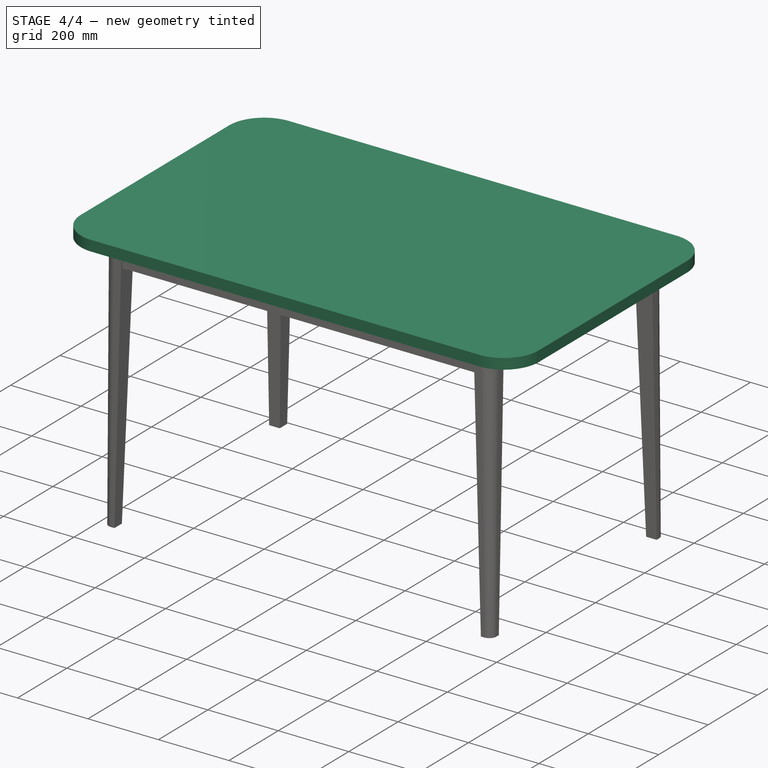
[diagram: stage 4 of 4 — iso view after this stage's code; geometry added in this stage tinted green]
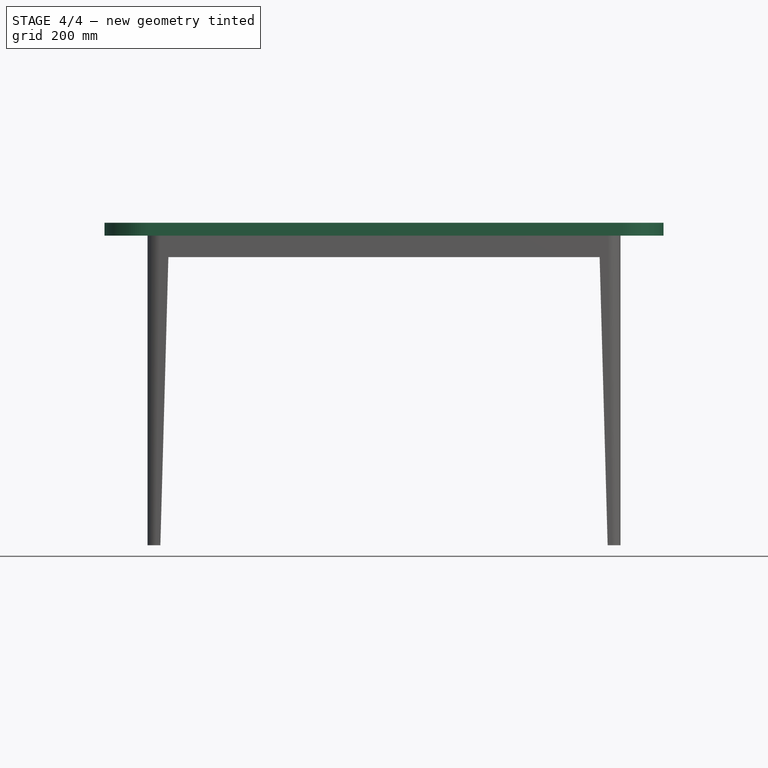
[diagram: stage 4 of 4 — front view after this stage's code; geometry added in this stage tinted green]
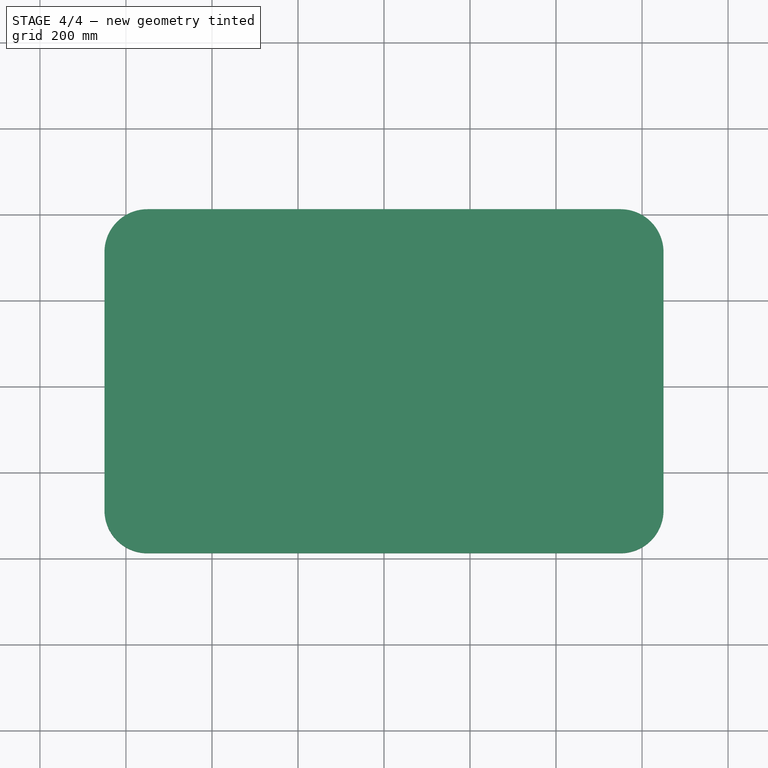
[diagram: stage 4 of 4 — top view after this stage's code; geometry added in this stage tinted green]
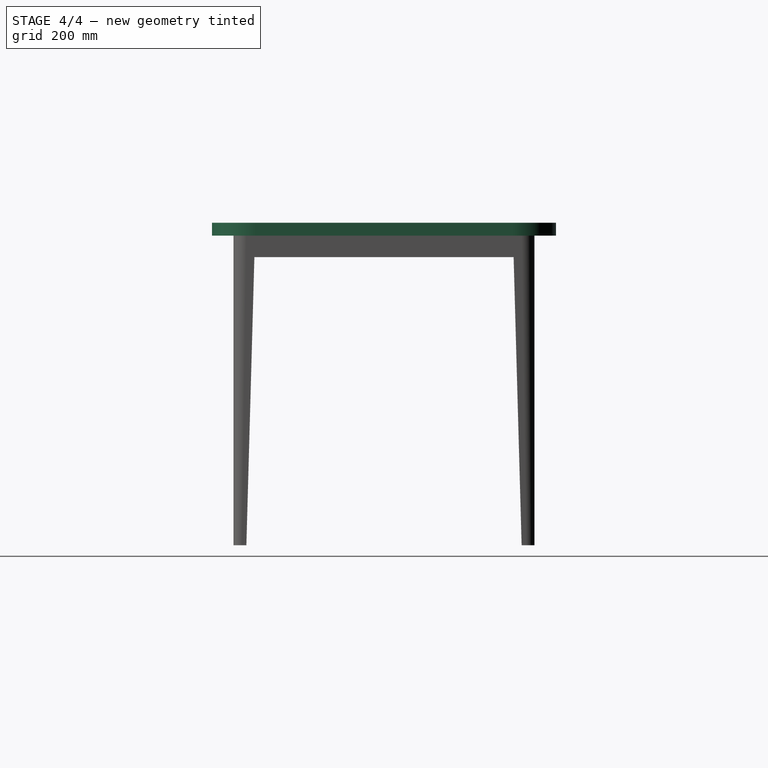
[diagram: stage 4 of 4 — right view after this stage's code; geometry added in this stage tinted green]
FEATURE [App::DocumentObjectGroup] Group292  label="02-Elements_to_move_rotate"
  Group = -> [Sketch022]
FEATURE [App::DocumentObjectGroup] Group249  label="04-Spreadsheet_"
  Group = -> [Spreadsheet003]
FEATURE [App::TextDocument] Text_document002  label="Rectangular_table_file_configurations_"
  Text = <blob: 3167 chars omitted>
FEATURE [App::TextDocument] Text_document003  label="Guidelines_new_objects_properties_"
  Text = <blob: 3302 chars omitted>
FEATURE [App::DocumentObjectGroup] Group250  label="05-Guidelines_"
  Group = -> [Text_document002,Text_document003]
FEATURE [App::TextDocument] Text_document011  label="Model_01_Rectangular_table"
  Text = #**************************************************************\n# To use, select all, copy and paste into the Python console.\n#**************************************************************\n\n# -*- coding: utf-8 -*-\n\n# Macro Begin: Rectangular_table_Model_01.FCMacro +++++++++++++++++++++++++++++++++++++++++++++++++\nimport FreeCAD\n\n#**************************************************************************\n # NOTE: Update the "VarSet" with the corresponding renamed one when inserted into the file ("VarSet001", "VarSet002", etc.). For example: Obj = FreeCAD.ActiveDocument.VarSet002\n#**************************************************************************\n\nObj = None\nObj = FreeCAD.ActiveDocument.VarSet # See NOTE above\n\n#***********************\n# A_component\n#***********************\n\nObj.A_Component_Label = 'Rectangular table'\n\n\n#***********************\n# Base_dimensions\n#***********************\n\nObj.Base_dimensions_B_Height = '750 mm'\n\nObj.Base_dimensions_B_Length = '1300 mm'\n\nObj.Base_dimensions_B_Width = '800 mm'\n\n#***********************\n# Feet\n#***********************\n\nObj.Feet_B_Retreat_01 = '100 mm'\n\nObj.Feet_B_Retreat_02 = '50 mm'\n\nObj.Feet_C_Material = FreeCAD.ActiveDocument.Material053\n\n#***********************\n# Foot_frames\n#***********************\n\nObj.Foot_frames_C_Material = FreeCAD.ActiveDocument.Material053\n\n#***********************\n# Panel\n#***********************\n\nObj.Panel_B_Radius = '100 mm'\n\nObj.Panel_B_Thickness = '30 mm'\n\nObj.Panel_C_Material = FreeCAD.ActiveDocument.Material055\n\n#***********************\n# Visualization\n#***********************\n\nObj.Visualization_A_Visualization = False\nApp.activeDocument().recompute(None,True,True)\nObj.Visualization_A_Visualization = True\nApp.activeDocument().recompute(None,True,True)\n\n\n# Macro End: Rectanular_table_Model_01.FCMacro +++++++++++++++++++++++++++++++++++++++++++++++++
FEATURE [App::TextDocument] Text_document012  label="Model_02_Bedside_table"
  Text = #**************************************************************\n# To use, select all, copy and paste into the Python console.\n#**************************************************************\n\n# -*- coding: utf-8 -*-\n\n# Macro Begin: Rectangular_table_Model_02.FCMacro +++++++++++++++++++++++++++++++++++++++++++++++++\nimport FreeCAD\n\n#**************************************************************************\n # NOTE: Update the "VarSet" with the corresponding renamed one when inserted into the file ("VarSet001", "VarSet002", etc.). For example: Obj = FreeCAD.ActiveDocument.VarSet02\n#**************************************************************************\n\nObj = None\nObj = FreeCAD.ActiveDocument.VarSet # See NOTE above\n#***********************\n# A_component\n#***********************\n\nObj.A_Component_Label = 'Square table'\n\n\n#***********************\n# Base_dimensions\n#***********************\n\nObj.Base_dimensions_B_Height = '400 mm'\n\nObj.Base_dimensions_B_Length = '400 mm'\n\nObj.Base_dimensions_B_Width = '400 mm'\n\n#***********************\n# Feet\n#***********************\n\nObj.Feet_B_Retreat_01 = '10 mm'\n\nObj.Feet_B_Retreat_02 = '10 mm'\n\nObj.Feet_C_Material = FreeCAD.ActiveDocument.Material053\n\n#***********************\n# Foot_frames\n#***********************\n\nObj.Foot_frames_C_Material = FreeCAD.ActiveDocument.Material053\n\n#***********************\n# Panel\n#***********************\n\nObj.Panel_B_Radius = '50 mm'\n\nObj.Panel_B_Thickness = '20 mm'\n\nObj.Panel_C_Material = FreeCAD.ActiveDocument.Material055\n\n#***********************\n# Visualization\n#***********************\n\nObj.Visualization_A_Visualization = False\nApp.activeDocument().recompute(None,True,True)\nObj.Visualization_A_Visualization = True\nApp.activeDocument().recompute(None,True,True)\n\n\n# Macro End: Rectanular_table_Model_02.FCMacro +++++++++++++++++++++++++++++++++++++++++++++++++
FEATURE [App::DocumentObjectGroup] Group  label="06-Macros_models_(open_copy_paste_Python_console)"
  Group = -> [Text_document011,Text_document012]
FEATURE [App::MaterialObjectPython] Material047  label="glass generic"  # material (typed FeaturePython)
  Material = Color=(0.3333333333333333, 0.6666666666666666, 1.0, 1.0); DiffuseColor=(0.3333333333333333, 0.6666666666666666, 1.0, 1.0); Name=glass generic; SectionColor=(0.8, 0.8, 0.8, 1.0); Transparency=70; ViewColor=(0.3333333333333333, 0.6666666666666666, 1.0, 1.0)
  Transparency = 70
FEATURE [App::DocumentObjectGroup] Group311  label="Glass_"
  Group = -> [Material047]
FEATURE [App::MaterialObjectPython] Material048  label="aluminum generic"  # material (typed FeaturePython)
  Material = AuthorAndLicense=Uwe Stöhr; CardName=Aluminum-Generic; Color=(0.8, 0.8, 0.8, 1.0); Density=2700 kg/m^3; DiffuseColor=(0.8, 0.8, 0.8, 1.0); ElectricalConductivity=370370.4 S/m; Father=Metal; KindOfMaterial=Aluminium; Name=aluminum generic; PoissonRatio=0.35; RelativePermeability=1.0; SectionColor=(0.8, 0.8, 0.8, 1.0); ShearModulus=25.0 GPa; SpecificHeat=897.0 J/kg/K; ThermalConductivity=237.0 W/m/K; ThermalExpansionCoefficient=23.1 µm/m/K; Transparency=0; UltimateTensileStrength=310 MPa; ViewColor=(0.8, 0.8, 0.8, 1.0); YoungsModulus=70000 MPa
  Transparency = 0
FEATURE [App::MaterialObjectPython] Material049  label="stainless steel generic"  # material (typed FeaturePython)
  Material = AuthorAndLicense=Uwe Stöhr; CardName=Iron-Generic; Color=(0.8, 0.8, 0.8, 1.0); Density=7874 kg/m^3; DiffuseColor=(0.3607843220233917, 0.3607843220233917, 0.40784314274787903); ElectricalConductivity=10.3 MS/m; Father=Metal; KindOfMaterial=Iron; Name=stainless steel generic; PoissonRatio=0.29; RelativePermeability=5000.0; SectionColor=(0.8, 0.8, 0.8, 1.0); ShearModulus=82.0 GPa; SpecificHeat=460.5 J/kg/K; ThermalConductivity=80.4 W/m/K; ThermalExpansionCoefficient=11.8 µm/m/K; Transparency=0; UltimateTensileStrength=497 MPa; ViewColor=(0.8, 0.8, 0.8, 1.0); YieldStrength=428 MPa; YoungsModulus=211 GPa
  Transparency = 0
FEATURE [App::DocumentObjectGroup] Group310  label="Metal_"
  Group = -> [Material049,Material048]
FEATURE [App::MaterialObjectPython] Material053  label="wood generic"  # material (typed FeaturePython)
  Description = A standard construction wood
  Material = AuthorAndLicense=(c) 2015 Bernd Hahnebach (CC-BY 3.0); CardName=Wood-Generic; Color=(0.8, 0.8, 0.8, 1.0); Density=700 kg/m^3; Description=A standard construction wood; DiffuseColor=(0.45490196347236633, 0.22745098173618317, 0.0); Father=Aggregate; Name=wood generic; PoissonRatio=0.05; ProductURL=https://en.wikipedia.org/wiki/Wood; SectionColor=(0.8, 0.8, 0.8, 1.0); Transparency=0; ViewColor=(0.8, 0.8, 0.8, 1.0); YoungsModulus=12000 MPa
  ProductURL = https://en.wikipedia.org/wiki/Wood
  Transparency = 0
FEATURE [Part::Compound] Compound  label="02-Foot_frame_"
  Links = -> [Extrude084143354,Extrude084143355]
  Material = -> Material053
  expr: Material = VarSet.Foot_frames_C_Material
  expr: Visibility = VarSet.Visualization_A_Visualization
FEATURE [App::MaterialObjectPython] Material055  label="white Formica generic"  # material (typed FeaturePython)
  Description = A standard ceramic
  Material = AuthorAndLicense=(c) 2015 Bernd Hahnebach (CC-BY 3.0); CardName=Wood-Generic; Color=(0.8, 0.8, 0.8, 1.0); Density=700 kg/m^3; Description=A standard ceramic; DiffuseColor=(1.0, 1.0, 1.0); Father=Aggregate; Name=white Formica generic; PoissonRatio=0.05; ProductURL=https://en.wikipedia.org/wiki/Wood; SectionColor=(0.8, 0.8, 0.8, 1.0); Transparency=0; ViewColor=(0.8, 0.8, 0.8, 1.0); YoungsModulus=12000 MPa
  ProductURL = https://en.wikipedia.org/wiki/Wood
  Transparency = 0
FEATURE [Part::Extrusion] Extrude039021  label="01-Main_panel_"
  Area = 18000
  Base = -> Sketch255
  Dir = (0,0,1)
  DirMode = 2
  FaceMakerClass = Part::FaceMakerBullseye
  FaceMakerMode = 3
  LengthFwd = 30
  LengthRev = 0
  Material = -> Material055
  Placement = pos=(0,0,750) rot=(0,0,1;0rad)
  Reversed = true
  Solid = true
  Symmetric = false
  expr: .Placement.Base.z = VarSet.Base_dimensions_B_Height
  expr: Area = .Shape.Face5.Area
  expr: LengthFwd = VarSet.Panel_B_Thickness
  expr: Material = VarSet.Panel_C_Material
  expr: Visibility = VarSet.Visualization_A_Visualization
FEATURE [App::DocumentObjectGroup] Group248  label="03-Component_parts_"
  Group = -> [Extrude039021,Compound,Compound001]
FEATURE [App::FeaturePython] Section  label="Section_Plan_01"  # WARN: FeaturePython — macro-defined, semantics opaque (R4)
  AttacherType = Attacher::AttachEngine3D
  AttachmentOffset = pos=(0,0,1050) rot=(0,0,1;0rad)
  AttachmentSupport = -> [Sketch022]
  Clip = false
  Depth = 0
  MapMode = 2
  Objects = -> [Group248]
  OnlySolids = true
  Placement = pos=(0,0,1050) rot=(0,0,1;0rad)
  UseMaterialColorForFill = false
  expr: .AttachmentOffset.Base.z = VarSet.Base_dimensions_B_Height + 300 mm
FEATURE [App::FeaturePython] Section002  label="Section002_Lateral_01"  # WARN: FeaturePython — macro-defined, semantics opaque (R4)
  AttacherType = Attacher::AttachEngine3D
  AttachmentOffset = pos=(0,600,950) rot=(0,0,1;0rad)
  AttachmentSupport = -> [Sketch022]
  Clip = false
  Depth = 0
  MapMode = 4
  Objects = -> [Group248]
  OnlySolids = true
  Placement = pos=(950,0,600) rot=(0.57735,0.57735,0.57735;2.0944rad)
  UseMaterialColorForFill = false
  expr: .AttachmentOffset.Base.z = VarSet.Base_dimensions_B_Length / 2 + 300 mm
FEATURE [App::FeaturePython] Section003  label="Section003_Transversal"  # WARN: FeaturePython — macro-defined, semantics opaque (R4)
  AttacherType = Attacher::AttachEngine3D
  AttachmentOffset = pos=(0,600,0) rot=(0,0,1;0rad)
  AttachmentSupport = -> [Sketch022]
  Clip = false
  Depth = 0
  MapMode = 4
  Objects = -> [Group248]
  OnlySolids = true
  Placement = pos=(0,0,600) rot=(0.57735,0.57735,0.57735;2.0944rad)
  UseMaterialColorForFill = false
FEATURE [App::FeaturePython] Section004  label="Section004_Lateral_02"  # WARN: FeaturePython — macro-defined, semantics opaque (R4)
  AttacherType = Attacher::AttachEngine3D
  AttachmentOffset = pos=(0,600,950) rot=(0,0,1;0rad)
  AttachmentSupport = -> [Sketch022]
  Clip = false
  Depth = 0
  MapMode = 4
  Objects = -> [Group248]
  OnlySolids = true
  Placement = pos=(-950,0,600) rot=(0.57735,-0.57735,-0.57735;2.0944rad)
  UseMaterialColorForFill = false
  expr: .AttachmentOffset.Base.z = VarSet.Base_dimensions_B_Length / 2 + 300 mm
FEATURE [App::FeaturePython] Section005  label="Section005_Frontal_"  # WARN: FeaturePython — macro-defined, semantics opaque (R4)
  AttacherType = Attacher::AttachEngine3D
  AttachmentOffset = pos=(0,600,700) rot=(0,0,1;0rad)
  AttachmentSupport = -> [Sketch022]
  Clip = false
  Depth = 0
  MapMode = 3
  Objects = -> [Group248]
  OnlySolids = true
  Placement = pos=(0,-700,600) rot=(1,0,0;1.5708rad)
  UseMaterialColorForFill = false
  expr: .AttachmentOffset.Base.z = VarSet.Base_dimensions_B_Width / 2 + 300 mm
FEATURE [App::VarSet] VarSet  label="01-Prop_Rectangular_table_configurations_#_"
  A_Component_Label = Rectangular table
  Base_dimensions_B_Height = 750
  Base_dimensions_B_Length = 1300
  Base_dimensions_B_Width = 800
  Feet_B_Retreat_01 = 100
  Feet_B_Retreat_02 = 50
  Feet_C_Material = -> Material053
  Foot_frames_C_Material = -> Material053
  Panel_B_Radius = 100
  Panel_B_Thickness = 30
  Panel_C_Material = -> Material055
  Visualization_A_Visualization = true
FEATURE [Part::Part2DObjectPython] Shape2DView  label="Plan_Rectangular table_#_"  # Draft 2D object (typed FeaturePython)
  AutoUpdate = true
  Base = -> Section
  Clip = false
  FuseArch = false
  HiddenLines = false
  InPlace = true
  OnlySolids = false
  Projection = (0.618809,-0.653689,0.435622)
  ProjectionMode = 0
  SegmentLength = 0.05
  Tessellation = false
  VisibleOnly = false
  expr: Label = <<Plan_>> + VarSet.A_Component_Label + <<_#_>>
FEATURE [App::DocumentObjectGroup] Group002  label="08-Sections_plan_#_"
  Group = -> [Section,Section002,Section003,Section004,Section005,Shape2DView]
FEATURE [App::DocumentObjectGroup] Group309  label="Wood_"
  Group = -> [Material053,Material055]
FEATURE [App::DocumentObjectGroupPython] MaterialContainer001  label="02-Materials"  # scripted group (container) (typed FeaturePython)
  Group = -> [Group311,Group310,Group309]
FEATURE [App::DocumentObjectGroup] Group251  label="07-Materials_"
  Group = -> [MaterialContainer001]
FEATURE [App::DocumentObjectGroup] Group286  label="Rectangular table_#_"
  Group = -> [VarSet,Group292,Group248,Group249,Group250,Group,Group251,Group002]
  expr: Label = VarSet.A_Component_Label + <<_#_>>
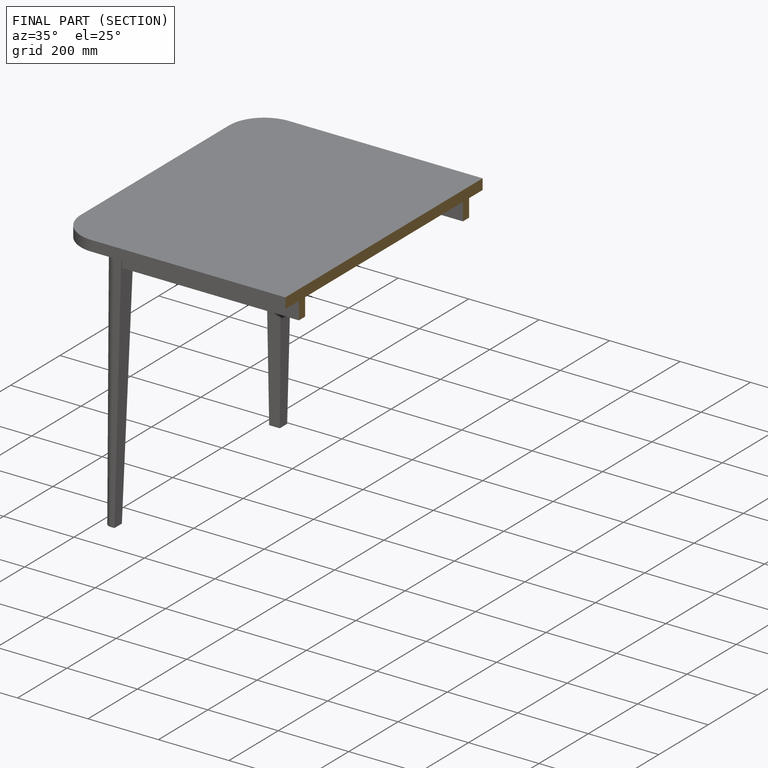
[diagram: finished part — half-section view (interior)]
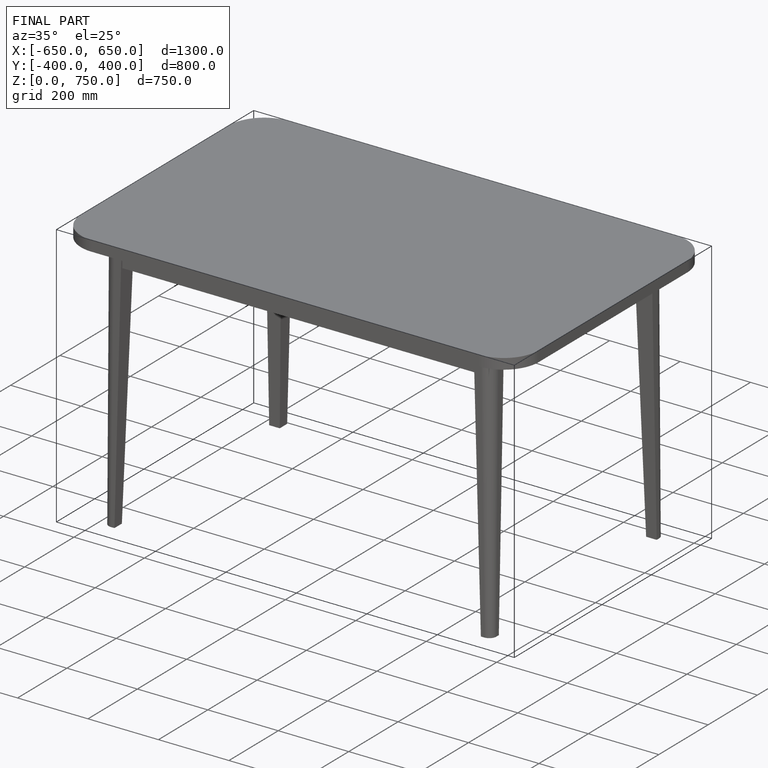
[diagram: finished part — iso view with bounding-box wireframe]
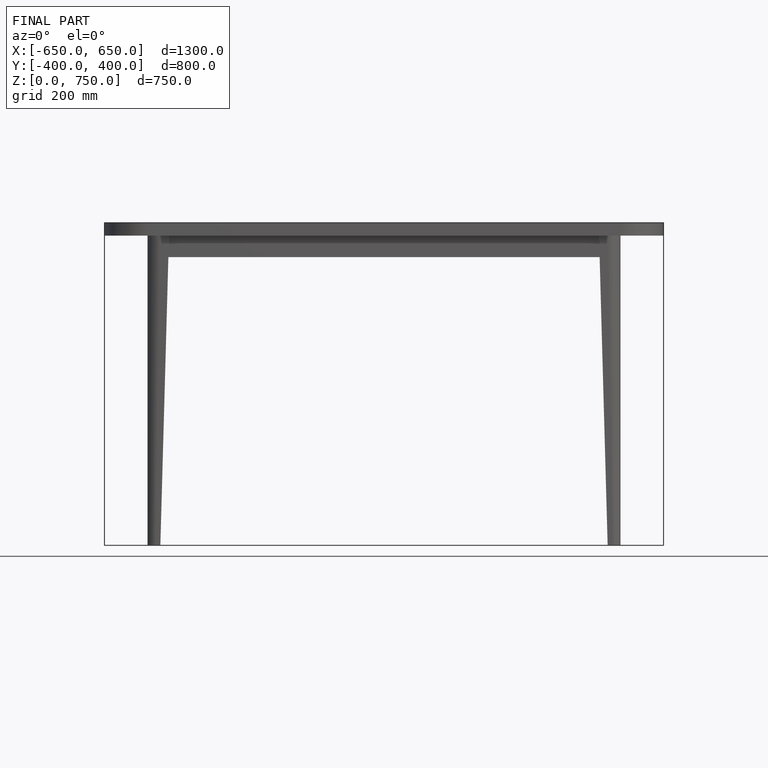
[diagram: finished part — front view with bounding-box wireframe]
